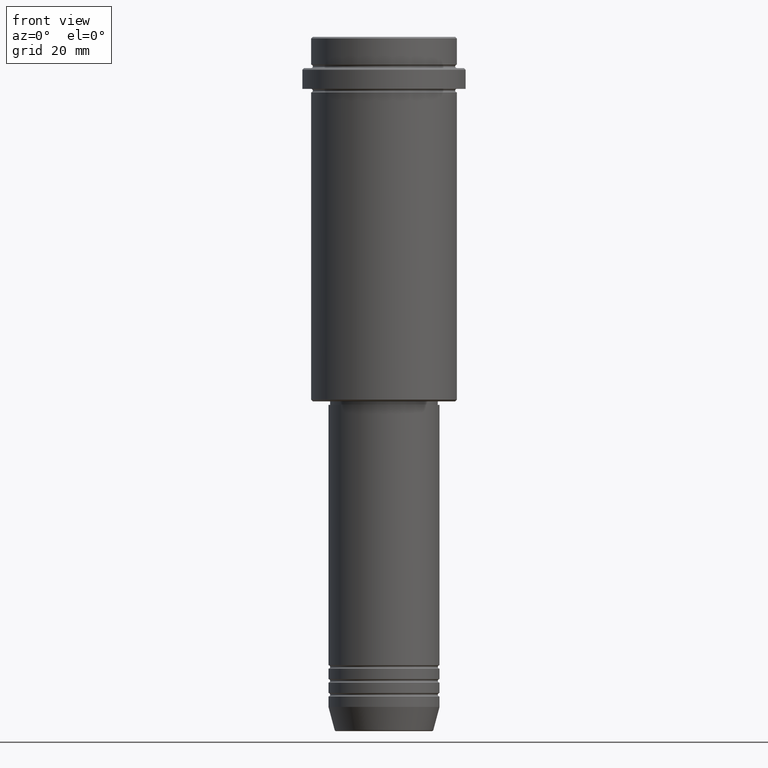
[diagram: clean part render]
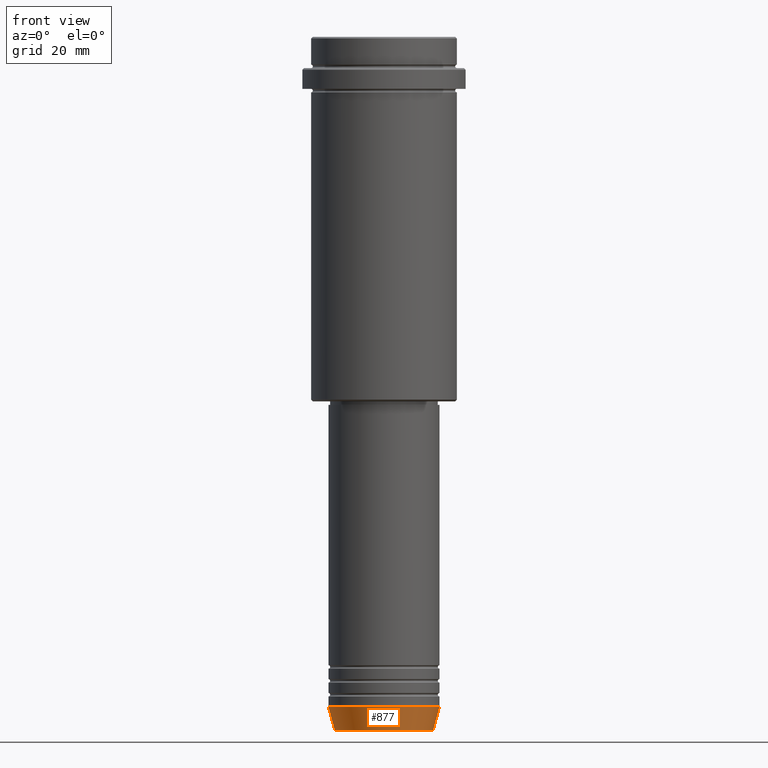
[diagram: same view with one face highlighted and labeled with its STEP entity id]
A machine part, front view. The second image highlights one B-rep face of the part: STEP entity #877.
In plain terms, the highlighted conical surface has half-angle 15 deg.
Its self-contained STEP definition (entity closure, byte-faithful):
#91 = VERTEX_POINT ( 'NONE', #176 ) ;
#176 = CARTESIAN_POINT ( 'NONE',  ( 16.00000000000000000, 0.000000000000000000, -193.0000000000000000 ) ) ;
#197 = VECTOR ( 'NONE', #1122, 1000.000000000000000 ) ;
#228 = CARTESIAN_POINT ( 'NONE',  ( 0.000000000000000000, 0.000000000000000000, -199.6294095225512706 ) ) ;
#259 = VERTEX_POINT ( 'NONE', #335 ) ;
#268 = FACE_OUTER_BOUND ( 'NONE', #973, .T. ) ;
#275 = CARTESIAN_POINT ( 'NONE',  ( 0.000000000000000000, 0.000000000000000000, -193.0000000000000000 ) ) ;
#335 = CARTESIAN_POINT ( 'NONE',  ( 14.22365507213718239, 0.000000000000000000, -199.6294095225512706 ) ) ;
#365 = CARTESIAN_POINT ( 'NONE',  ( 0.000000000000000000, 0.000000000000000000, -193.0000000000000000 ) ) ;
#381 = LINE ( 'NONE', #1244, #197 ) ;
#395 = ORIENTED_EDGE ( 'NONE', *, *, #1403, .T. ) ;
#474 = CARTESIAN_POINT ( 'NONE',  ( -16.00000000000000000, 1.959434878635765131E-15, -193.0000000000000000 ) ) ;
#480 = VERTEX_POINT ( 'NONE', #1332 ) ;
#501 = VERTEX_POINT ( 'NONE', #474 ) ;
#523 = AXIS2_PLACEMENT_3D ( 'NONE', #365, #1373, #801 ) ;
#637 = LINE ( 'NONE', #1157, #1017 ) ;
#711 = CIRCLE ( 'NONE', #869, 14.22365507213718239 ) ;
#791 = ORIENTED_EDGE ( 'NONE', *, *, #863, .F. ) ;
#801 = DIRECTION ( 'NONE',  ( 1.000000000000000000, 0.000000000000000000, 0.000000000000000000 ) ) ;
#822 = ORIENTED_EDGE ( 'NONE', *, *, #1004, .F. ) ;
#863 = EDGE_CURVE ( 'NONE', #480, #501, #381, .T. ) ;
#869 = AXIS2_PLACEMENT_3D ( 'NONE', #228, #1115, #1334 ) ;
#877 = ADVANCED_FACE ( 'NONE', ( #268 ), #1038, .T. ) ;
#973 = EDGE_LOOP ( 'NONE', ( #791, #1399, #395, #822 ) ) ;
#1004 = EDGE_CURVE ( 'NONE', #501, #91, #1132, .T. ) ;
#1017 = VECTOR ( 'NONE', #1284, 1000.000000000000000 ) ;
#1038 = CONICAL_SURFACE ( 'NONE', #1344, 16.00000000000000000, 0.2617993877991500740 ) ;
#1115 = DIRECTION ( 'NONE',  ( -0.000000000000000000, -0.000000000000000000, 1.000000000000000000 ) ) ;
#1122 = DIRECTION ( 'NONE',  ( -0.2588190451025213501, 3.169619151431772337E-17, 0.9659258262890680902 ) ) ;
#1132 = CIRCLE ( 'NONE', #523, 16.00000000000000000 ) ;
#1157 = CARTESIAN_POINT ( 'NONE',  ( 16.00000000000000000, 0.000000000000000000, -193.0000000000000000 ) ) ;
#1210 = EDGE_CURVE ( 'NONE', #480, #259, #711, .T. ) ;
#1244 = CARTESIAN_POINT ( 'NONE',  ( -16.00000000000000000, 1.959434878635765131E-15, -193.0000000000000000 ) ) ;
#1251 = DIRECTION ( 'NONE',  ( 1.000000000000000000, 0.000000000000000000, 0.000000000000000000 ) ) ;
#1284 = DIRECTION ( 'NONE',  ( 0.2588190451025213501, 0.000000000000000000, 0.9659258262890680902 ) ) ;
#1332 = CARTESIAN_POINT ( 'NONE',  ( -14.22365507213718239, 1.850665122131322942E-15, -199.6294095225512706 ) ) ;
#1334 = DIRECTION ( 'NONE',  ( 1.000000000000000000, 0.000000000000000000, 0.000000000000000000 ) ) ;
#1343 = DIRECTION ( 'NONE',  ( -0.000000000000000000, -0.000000000000000000, 1.000000000000000000 ) ) ;
#1344 = AXIS2_PLACEMENT_3D ( 'NONE', #275, #1343, #1251 ) ;
#1373 = DIRECTION ( 'NONE',  ( -0.000000000000000000, -0.000000000000000000, 1.000000000000000000 ) ) ;
#1399 = ORIENTED_EDGE ( 'NONE', *, *, #1210, .T. ) ;
#1403 = EDGE_CURVE ( 'NONE', #259, #91, #637, .T. ) ;